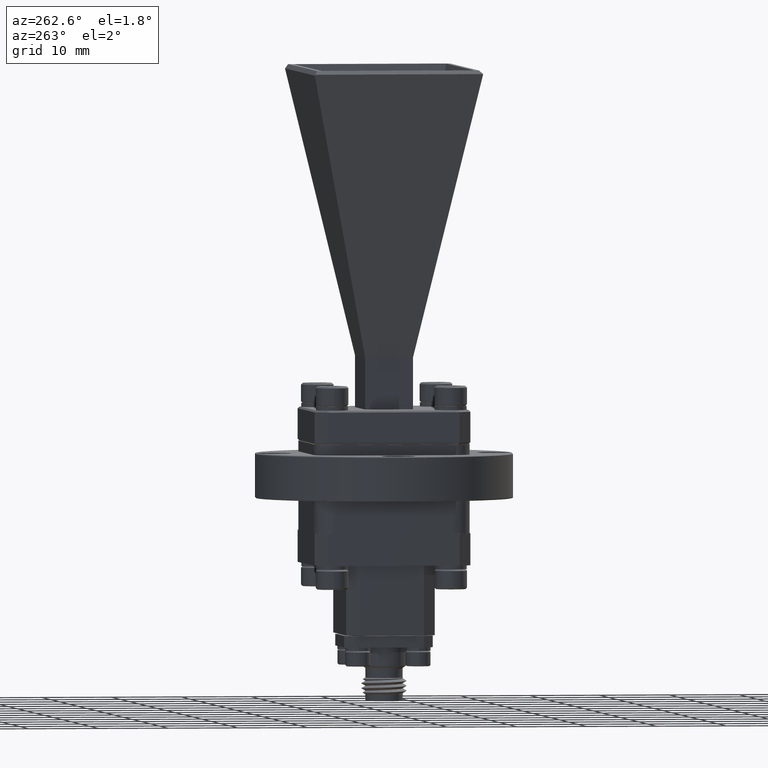
[diagram: clean part render]
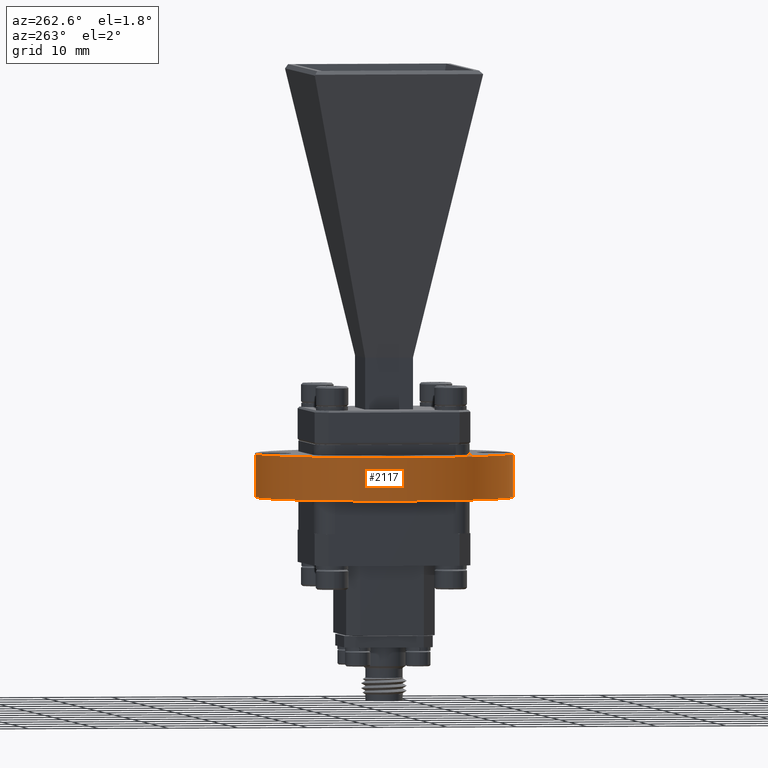
[diagram: same view with one face highlighted and labeled with its STEP entity id]
A machine part, auxiliary view. The second image highlights one B-rep face of the part: STEP entity #2117.
In plain terms, the highlighted cylindrical surface (partial cylindrical patch) has radius 18.415 mm, axis along (0, 0, -1).
Its self-contained STEP definition (entity closure, byte-faithful):
#141 = EDGE_CURVE ( 'NONE', #16131, #11592, #15459, .T. ) ;
#908 = ORIENTED_EDGE ( 'NONE', *, *, #141, .T. ) ;
#2117 = ADVANCED_FACE ( 'NONE', ( #4384 ), #2422, .T. ) ;
#2191 = CARTESIAN_POINT ( 'NONE',  ( 8.363844148843452900E-016, -0.7250000000000003100, 0.6150000000000003200 ) ) ;
#2422 = CYLINDRICAL_SURFACE ( 'NONE', #5976, 0.7250000000000000900 ) ;
#2972 = CARTESIAN_POINT ( 'NONE',  ( 8.363844148843452900E-016, -0.7250000000000003100, 0.3729999999999995500 ) ) ;
#3143 = AXIS2_PLACEMENT_3D ( 'NONE', #3594, #15884, #19053 ) ;
#3332 = CARTESIAN_POINT ( 'NONE',  ( 5.463695987328526400E-016, -3.414809992080329000E-016, 0.6199999999999996600 ) ) ;
#3594 = CARTESIAN_POINT ( 'NONE',  ( 5.463695987328526400E-016, -3.414809992080329000E-016, 0.6150000000000003200 ) ) ;
#3660 = EDGE_CURVE ( 'NONE', #14914, #19954, #4571, .T. ) ;
#3912 = VECTOR ( 'NONE', #14464, 39.37007874015748100 ) ;
#4384 = FACE_OUTER_BOUND ( 'NONE', #7748, .T. ) ;
#4560 = EDGE_CURVE ( 'NONE', #16131, #19954, #18410, .T. ) ;
#4571 = CIRCLE ( 'NONE', #17603, 0.7250000000000003100 ) ;
#5762 = CARTESIAN_POINT ( 'NONE',  ( 5.463695987328526400E-016, -3.414809992080329000E-016, 0.3729999999999995500 ) ) ;
#5976 = AXIS2_PLACEMENT_3D ( 'NONE', #3332, #12822, #8190 ) ;
#7264 = DIRECTION ( 'NONE',  ( -2.167549542363497100E-032, -4.252616922431773500E-048, 1.000000000000000000 ) ) ;
#7440 = VECTOR ( 'NONE', #15383, 39.37007874015748100 ) ;
#7700 = CARTESIAN_POINT ( 'NONE',  ( 8.363844148843453900E-016, -0.7250000000000006400, 0.6199999999999996600 ) ) ;
#7737 = ORIENTED_EDGE ( 'NONE', *, *, #3660, .T. ) ;
#7748 = EDGE_LOOP ( 'NONE', ( #13708, #908, #10616, #7737 ) ) ;
#8190 = DIRECTION ( 'NONE',  ( -2.775557561562891800E-016, 1.000000000000000000, 0.0000000000000000000 ) ) ;
#8985 = EDGE_CURVE ( 'NONE', #11592, #14914, #9706, .T. ) ;
#9706 = LINE ( 'NONE', #12908, #3912 ) ;
#10616 = ORIENTED_EDGE ( 'NONE', *, *, #8985, .T. ) ;
#11592 = VERTEX_POINT ( 'NONE', #17018 ) ;
#12822 = DIRECTION ( 'NONE',  ( 2.167549542363497100E-032, 4.252616922431773500E-048, -1.000000000000000000 ) ) ;
#12908 = CARTESIAN_POINT ( 'NONE',  ( 3.451416755195429700E-016, 0.7249999999999997600, 0.6199999999999996600 ) ) ;
#13255 = CARTESIAN_POINT ( 'NONE',  ( 3.451416755195429700E-016, 0.7249999999999997600, 0.3729999999999995500 ) ) ;
#13708 = ORIENTED_EDGE ( 'NONE', *, *, #4560, .F. ) ;
#14464 = DIRECTION ( 'NONE',  ( 2.167549542363497400E-032, 4.252616922431773500E-048, -1.000000000000000000 ) ) ;
#14914 = VERTEX_POINT ( 'NONE', #13255 ) ;
#15383 = DIRECTION ( 'NONE',  ( 2.167549542363497400E-032, 4.252616922431773500E-048, -1.000000000000000000 ) ) ;
#15459 = CIRCLE ( 'NONE', #3143, 0.7250000000000003100 ) ;
#15884 = DIRECTION ( 'NONE',  ( 2.167549542363497100E-032, 4.252616922431773500E-048, -1.000000000000000000 ) ) ;
#16131 = VERTEX_POINT ( 'NONE', #2191 ) ;
#16641 = DIRECTION ( 'NONE',  ( 2.775557561562890900E-016, -1.000000000000000000, 0.0000000000000000000 ) ) ;
#17018 = CARTESIAN_POINT ( 'NONE',  ( 3.451416755195429700E-016, 0.7249999999999997600, 0.6150000000000003200 ) ) ;
#17603 = AXIS2_PLACEMENT_3D ( 'NONE', #5762, #7264, #16641 ) ;
#18410 = LINE ( 'NONE', #7700, #7440 ) ;
#19053 = DIRECTION ( 'NONE',  ( 2.775557561562890900E-016, -1.000000000000000000, 0.0000000000000000000 ) ) ;
#19954 = VERTEX_POINT ( 'NONE', #2972 ) ;